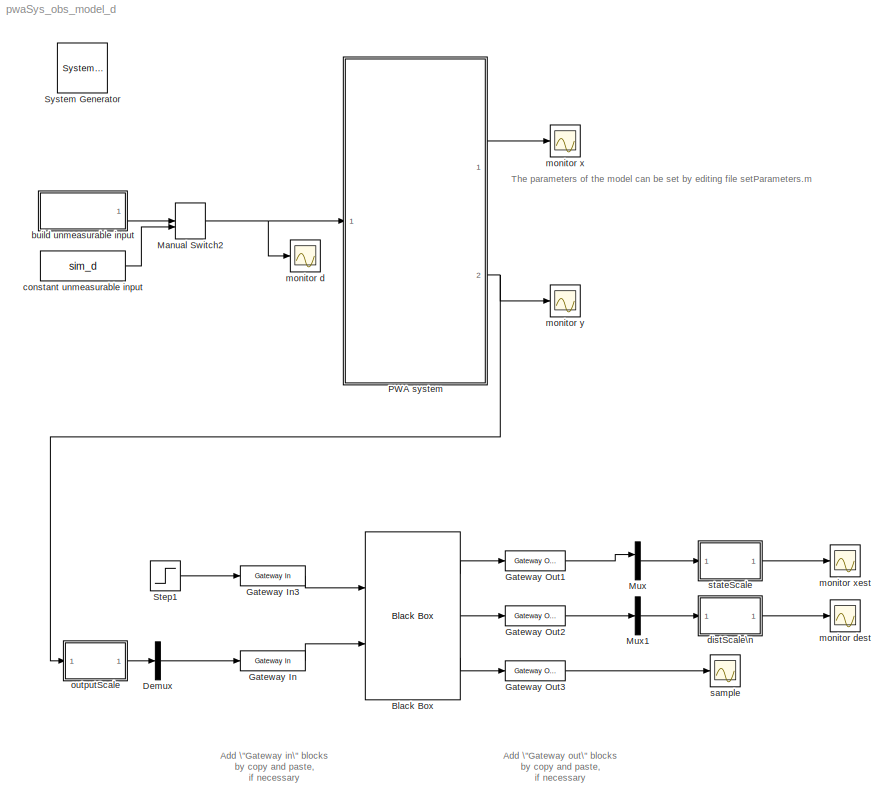
MODEL pwaSys_obs_model_d
KIND model
CONFIG InitFcn = load simulink.mat\nsetParameters
CONFIG StartFcn = load simulink.mat\nsetParameters\nclear res_X res_U res_Y res_P res_D\nclear res_Xest res_Dest res_Yest
CONFIG StopFcn = plotScope
BLOCK [Reference]  System Generator  REF=xbsIndex_r4/ System Generator
  AttributesFormatString = System\\nGenerator
  Impl_file = Vivado Implementation Defaults
  Ports = []
  SID = 96
  SourceBlock = xbsIndex_r4/ System Generator
  SourceType = Xilinx System Generator Block
  Synth_file = Vivado Synthesis Defaults
  Tag = genX
  UserData = DataTag0
  UserDataPersistent = on
  block_type = sysgen
  clock_wrapper = Clock Enables
  core_generation = According to Block Masks
  dbl_ovrd = According to Block Masks
  dcm_input_clock_period = 10
  deprecated_control = off
  directory = ./netlist
  eval_field = 0
  has_advanced_control = 0
  incr_netlist = off
  infoedit = System Generator
  package = fbg676
  part = xc7k325t
  proj_type = Vivado
  run_coregen = off
  sg_icon_stat = 50,50,0,0,token,white,0,58c5b5770fe5f7c311f53dbc6e73f0f6,right,,[ ],[ ]
  sg_mask_display = fprintf('','COMMENT: begin icon graphics');\npatch([0 50 50 0 0 ],[0 0 50 50 0 ],[1 1 1 ]);\npatch([1.6375 16.81 27.31 37.81 48.31 27.31 12.1375 1.6375 ],[36.655 36.655 47.155 36.655 47.155 47.155 47.155 36.655 ],[0.933333 0.203922 0.141176 ]);\npatch([12.1375 27.31 16.81 1.6375 12.1375 ],[26.155 26.155 36.655 36.655 26.155 ],[0.698039 0.0313725 0.219608 ]);\npatch([1.6375 16.81 27.31 12.1375 1.63...<+337ch>
  sggui_pos = 326,312,454,398
  simulink_period = clk_period
  speed = -3
  synthesis_tool = Vivado
  sysclk_period = 10
  testbench = off
  trim_vbits = Everywhere in SubSystem
  xilinxfamily = kintex7
BLOCK [Reference] Black Box  REF=xbsIndex_r4/Black Box
  Ports = [2, 3]
  SID = 60
  SourceBlock = xbsIndex_r4/Black Box
  SourceType = Xilinx Black Box Block
  block_type = blackbox2
  has_advanced_control = 0
  infoedit = Incorporates black box HDL and simulation model into a System Generator design.<br><br>You must supply a Black Box with certain information about the HDL component you would like to bring into System Generator. This information is provided through a Matlab function.<br><br>When \"Simulation mode\" is set to \"Inactive\", you will typically want to provide a separate simulation model by using a Sim...<+134ch>
  init_code = embeddedSystem_config
  sg_icon_stat = 95,170,2,3,white,blue,0,e8ec7301,right,,[ ],[ ]
  sg_mask_display = fprintf('','COMMENT: begin icon graphics');\npatch([0 95 95 0 0 ],[0 0 170 170 0 ],[0.77 0.82 0.91 ]);\nplot([0 95 95 0 0 ],[0 0 170 170 0 ]);\npatch([18.075 36.86 49.86 62.86 75.86 49.86 31.075 18.075 ],[99.43 99.43 112.43 99.43 112.43 112.43 112.43 99.43 ],[1 1 1 ]);\npatch([31.075 49.86 36.86 18.075 31.075 ],[86.43 86.43 99.43 99.43 86.43 ],[0.931 0.946 0.973 ]);\npatch([18.075 36.86 49.86 31.0...<+531ch>
  sggui_pos = -10,14,403,439
  sim_method = ISE Simulator
  verbose = off
  xl_area = [0,0,0,0,0,0,0]
  xl_use_area = off
BLOCK [Demux] Demux
  DisplayOption = bar
  Outputs = sim_ny
  Ports = [1, 1]
  SID = 61
BLOCK [Reference] Gateway In  REF=xbsIndex_r4/Gateway In
  ADCChannel = '1'
  LOCs = {}
  Ports = [1, 1]
  SID = 62
  SourceBlock = xbsIndex_r4/Gateway In
  SourceType = Xilinx Gateway In Block
  UseAsADC = off
  address_offset = hex2dec('00')
  arith_type = Signed  (2's comp)
  automatic_assignment = on
  bin_pt = 0
  block_type = gatewayin
  columns = 1
  dbl_ovrd = off
  exp_width = 8
  frac_width = 24
  gui_display_data_type = Fixed-point
  has_advanced_control = 0
  hdl_port = on
  infoedit = Gateway in block.  Converts inputs of type Simulink integer, single, double and fixed-point to  Xilinx fixed-point or floating-point data type.<br><br>Hardware notes:  In hardware these blocks become top level input ports.
  inherit_from_input = off
  interface = None
  intf_description = ''
  intf_name = ''
  io_standard = {}
  locs_specified = off
  n_bits = sim_n_bit_in
  overflow = Saturate
  period = clk_period
  preci_type = Single
  quantization = Round  (unbiased: +/- Inf)
  rows = 1
  sg_icon_stat = 65,20,1,1,white,yellow,1,00d3666e,right,,[ ],[ ]
  sg_mask_display = fprintf('','COMMENT: begin icon graphics');\npatch([0 65 65 0 0 ],[0 0 20 20 0 ],[0.95 0.93 0.65 ]);\nplot([0 65 65 0 0 ],[0 0 20 20 0 ]);\npatch([27.55 30.44 32.44 34.44 36.44 32.44 29.55 27.55 ],[12.22 12.22 14.22 12.22 14.22 14.22 14.22 12.22 ],[1 1 1 ]);\npatch([29.55 32.44 30.44 27.55 29.55 ],[10.22 10.22 12.22 12.22 10.22 ],[0.985 0.979 0.895 ]);\npatch([27.55 30.44 32.44 29.55 27.55 ],[8.22...<+396ch>
  sggui_pos = -10,14,388,698
  timing_constraint = None
  xl_area = [0,0,0,0,0,0,0]
  xl_use_area = off
BLOCK [Reference] Gateway In3  REF=xbsIndex_r4/Gateway In
  ADCChannel = '1'
  LOCs = {}
  Ports = [1, 1]
  SID = 63
  SourceBlock = xbsIndex_r4/Gateway In
  SourceType = Xilinx Gateway In Block
  UseAsADC = off
  address_offset = hex2dec('00')
  arith_type = Boolean
  automatic_assignment = on
  bin_pt = 14
  block_type = gatewayin
  columns = 1
  dbl_ovrd = off
  exp_width = 8
  frac_width = 24
  gui_display_data_type = Boolean
  has_advanced_control = 0
  hdl_port = on
  infoedit = Gateway in block.  Converts inputs of type Simulink integer, single, double and fixed-point to  Xilinx fixed-point or floating-point data type.<br><br>Hardware notes:  In hardware these blocks become top level input ports.
  inherit_from_input = off
  interface = None
  intf_description = ''
  intf_name = ''
  io_standard = {}
  locs_specified = off
  n_bits = 16
  overflow = Saturate
  period = clk_period
  preci_type = Single
  quantization = Round  (unbiased: +/- Inf)
  rows = 1
  sg_icon_stat = 65,20,1,1,white,yellow,1,00d3666e,right,,[ ],[ ]
  sg_mask_display = fprintf('','COMMENT: begin icon graphics');\npatch([0 65 65 0 0 ],[0 0 20 20 0 ],[0.95 0.93 0.65 ]);\nplot([0 65 65 0 0 ],[0 0 20 20 0 ]);\npatch([27.55 30.44 32.44 34.44 36.44 32.44 29.55 27.55 ],[12.22 12.22 14.22 12.22 14.22 14.22 14.22 12.22 ],[1 1 1 ]);\npatch([29.55 32.44 30.44 27.55 29.55 ],[10.22 10.22 12.22 12.22 10.22 ],[0.985 0.979 0.895 ]);\npatch([27.55 30.44 32.44 29.55 27.55 ],[8.22...<+396ch>
  sggui_pos = -10,14,388,698
  timing_constraint = None
  xl_area = [0,0,0,0,0,0,0]
  xl_use_area = off
BLOCK [Reference] Gateway Out1  REF=xbsIndex_r4/Gateway Out
  DACChannel = '1'
  LOCs = {}
  Ports = [1, 1]
  SID = 64
  SourceBlock = xbsIndex_r4/Gateway Out
  SourceType = Xilinx Gateway Out Block
  UseAsDAC = off
  address_offset = hex2dec('00')
  automatic_assignment = on
  block_type = gatewayout
  columns = 1
  has_advanced_control = 0
  hdl_port = on
  infoedit = Gateway out block.  Converts Xilinx fixed-point or floating-point type inputs into ouputs of type Simulink integer, single, double, or fixed-point.<br><br>Hardware notes:  In hardware these blocks become top level output ports or are discarded, depending on how they are configured.  <repeated x3 — deduplicated; at blocks: Gateway Out1, Gateway Out2, Gateway Out3>
  inherit_from_input = off
  interface = None
  intf_description = ''
  intf_name = ''
  io_standard = {}
  locs_specified = off
  rows = 1
  sg_icon_stat = 60,20,1,1,white,yellow,1,cc31b7ac,right,,[ ],[ ]
  sg_mask_display = fprintf('','COMMENT: begin icon graphics');\npatch([0 60 60 0 0 ],[0 0 20 20 0 ],[0.95 0.93 0.65 ]);\nplot([0 60 60 0 0 ],[0 0 20 20 0 ]);\npatch([25.55 28.44 30.44 32.44 34.44 30.44 27.55 25.55 ],[12.22 12.22 14.22 12.22 14.22 14.22 14.22 12.22 ],[1 1 1 ]);\npatch([27.55 30.44 28.44 25.55 27.55 ],[10.22 10.22 12.22 12.22 10.22 ],[0.985 0.979 0.895 ]);\npatch([25.55 28.44 30.44 27.55 25.55 ],[8.22...<+397ch>  <repeated x3 — deduplicated; at blocks: Gateway Out1, Gateway Out2, Gateway Out3>
  sggui_pos = -10,14,410,600
  timing_constraint = None
  xl_area = [0,0,0,0,0,0,0]
  xl_use_area = off
BLOCK [Reference] Gateway Out2  REF=xbsIndex_r4/Gateway Out
  DACChannel = '1'
  LOCs = {}
  Ports = [1, 1]
  SID = 87
  SourceBlock = xbsIndex_r4/Gateway Out
  SourceType = Xilinx Gateway Out Block
  UseAsDAC = off
  address_offset = hex2dec('00')
  automatic_assignment = on
  block_type = gatewayout
  columns = 1
  has_advanced_control = 0
  hdl_port = on
  inherit_from_input = off
  interface = None
  intf_description = ''
  intf_name = ''
  io_standard = {}
  locs_specified = off
  rows = 1
  sg_icon_stat = 60,20,1,1,white,yellow,1,cc31b7ac,right,,[ ],[ ]
  sggui_pos = -10,14,410,600
  timing_constraint = None
  xl_area = [0,0,0,0,0,0,0]
  xl_use_area = off
BLOCK [Reference] Gateway Out3  REF=xbsIndex_r4/Gateway Out
  DACChannel = '1'
  LOCs = {}
  Ports = [1, 1]
  SID = 65
  SourceBlock = xbsIndex_r4/Gateway Out
  SourceType = Xilinx Gateway Out Block
  UseAsDAC = off
  address_offset = hex2dec('00')
  automatic_assignment = on
  block_type = gatewayout
  columns = 1
  has_advanced_control = 0
  hdl_port = on
  inherit_from_input = off
  interface = None
  intf_description = ''
  intf_name = ''
  io_standard = {}
  locs_specified = off
  rows = 1
  sg_icon_stat = 60,20,1,1,white,yellow,1,cc31b7ac,right,,[ ],[ ]
  sggui_pos = 0,24,410,600
  timing_constraint = None
  xl_area = [0,0,0,0,0,0,0]
  xl_use_area = off
BLOCK [ManualSwitch] Manual Switch2
  CurrentSetting = 0
  SID = 32
BLOCK [Mux] Mux
  DisplayOption = bar
  Inputs = sim_nx
  Ports = [2, 1]
  SID = 66
BLOCK [Mux] Mux1
  DisplayOption = bar
  Inputs = sim_nd
  Ports = [1, 1]
  SID = 88
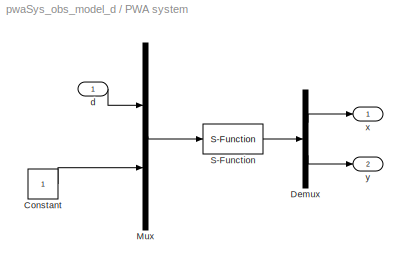
BLOCK [SubSystem] PWA system
  Ports = [1, 2]
  RequestExecContextInheritance = off
  SID = 5
  Variant = off
BLOCK [Constant] PWA system/Constant
  SID = 26
BLOCK [Demux] PWA system/Demux
  DisplayOption = bar
  Outputs = [sim_nx sim_ny]
  Ports = [1, 2]
  SID = 19
BLOCK [Mux] PWA system/Mux
  DisplayOption = bar
  Inputs = 2
  Ports = [2, 1]
  SID = 20
BLOCK [S-Function] PWA system/S-Function
  EnableBusSupport = off
  FunctionName = s_pwaSys_c
  Parameters = A,B,C,D,H,K,sim_x0
  Ports = [1, 1]
  SFunctionDeploymentMode = off
  SID = 97
BLOCK [Inport] PWA system/d
  IconDisplay = Port number
  SID = 9
BLOCK [Outport] PWA system/x
  IconDisplay = Port number
  SID = 7
BLOCK [Outport] PWA system/y
  IconDisplay = Port number
  Port = 2
  SID = 10
BLOCK [Step] Step1
  SID = 67
  SampleTime = 0
  Time = 0.5
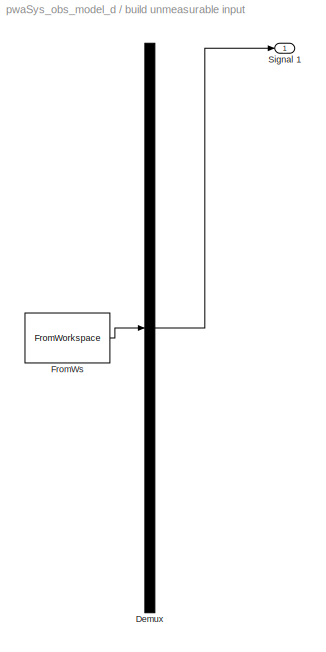
BLOCK [SubSystem] build unmeasurable input
  ClipboardFcn = sigbuilder_block('clipboard');
  CloseFcn = sigbuilder_block('close');
  ContinueFcn = sigbuilder_block('continue');
  CopyFcn = sigbuilder_block('copy');
  DeleteFcn = sigbuilder_block('delete');
  LoadFcn = sigbuilder_block('load');
  MaskHideContents = on
  ModelCloseFcn = sigbuilder_block('modelClose');
  NameChangeFcn = sigbuilder_block('namechange');
  OpenFcn = sigbuilder_block('open',[433.6 121.6 550.4 399.2 ]);
  PauseFcn = sigbuilder_block('pause');
  Ports = [0, 1]
  PreSaveFcn = sigbuilder_block('preSave');
  RequestExecContextInheritance = off
  SID = 13
  StartFcn = sigbuilder_block('start');
  StopFcn = sigbuilder_block('stop');
  Tag = STV Subsys
  Variant = off
BLOCK [Demux] build unmeasurable input/Demux
  Outputs = 1
  Ports = [1, 1]
  SID = 13:1
  Tag = STV Demux
BLOCK [FromWorkspace] build unmeasurable input/FromWs
  SID = 13:2
  SampleTime = 0
  SigBuilderData = DataTag1
  Tag = STV FromWs
  VariableName = tuvar
  VnvData = DataTag2
  ZeroCross = on
BLOCK [Outport] build unmeasurable input/Signal 1
  IconDisplay = Port number
  SID = 13:3
  Tag = STV Outport
BLOCK [Constant] constant unmeasurable input
  SID = 30
  Value = sim_d
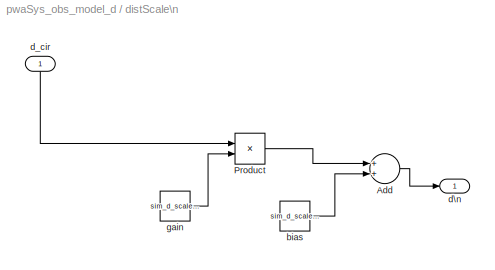
BLOCK [SubSystem] distScale\n
  Ports = [1, 1]
  RequestExecContextInheritance = off
  SID = 89
  Variant = off
BLOCK [Sum] distScale\n/Add
  InputSameDT = off
  OutDataTypeStr = Inherit: Inherit via internal rule
  Ports = [2, 1]
  SID = 91
  SaturateOnIntegerOverflow = off
BLOCK [Product] distScale\n/Product
  InputSameDT = off
  OutDataTypeStr = Inherit: Inherit via internal rule
  Ports = [2, 1]
  RndMeth = Floor
  SID = 92
  SaturateOnIntegerOverflow = off
BLOCK [Constant] distScale\n/bias
  SID = 93
  Value = sim_d_scale_bias
BLOCK [Outport] distScale\n/d\n
  IconDisplay = Port number
  SID = 95
BLOCK [Inport] distScale\n/d_cir
  IconDisplay = Port number
  SID = 90
BLOCK [Constant] distScale\n/gain
  SID = 94
  Value = sim_d_scale_gain
BLOCK [Scope] monitor d
  Ports = [1]
  SID = 25
  ScopeSpecificationString = C++SS(StrPVP('Location','[188, 365, 502, 602]'),StrPVP('Open','off'),MxPVP('AxesTitles',24,'struct(''axes1'',''%<SignalLabel>'')'),MxPVP('ScopeGraphics',28,'struct(''FigureColor'',''[0.5 0.5 0.5]'',''AxesColor'',''[0 0 0]'',''AxesTickColor'',''[1 1 1]'',''LineColors'',''[1 1 0;1 0 1;0 1 1;1 0 0;0 1 0;0 0 1]'',''LineStyles'',''-|-|-|-|-|-'',''LineWidths'',''[0.5 0.5 0.5 0.5 0.5 0.5]'',''MarkerStyle...<+263ch>
BLOCK [Scope] monitor dest
  Ports = [1]
  SID = 45
  ScopeSpecificationString = C++SS(StrPVP('Location','[188, 336, 502, 573]'),StrPVP('Open','off'),MxPVP('AxesTitles',24,'struct(''axes1'',''%<SignalLabel>'')'),MxPVP('ScopeGraphics',28,'struct(''FigureColor'',''[0.5 0.5 0.5]'',''AxesColor'',''[0 0 0]'',''AxesTickColor'',''[1 1 1]'',''LineColors'',''[1 1 0;1 0 1;0 1 1;1 0 0;0 1 0;0 0 1]'',''LineStyles'',''-|-|-|-|-|-'',''LineWidths'',''[0.5 0.5 0.5 0.5 0.5 0.5]'',''MarkerStyle...<+266ch>
BLOCK [Scope] monitor x
  Ports = [1]
  SID = 16
  ScopeSpecificationString = C++SS(StrPVP('Location','[188, 364, 512, 603]'),StrPVP('Open','off'),MxPVP('AxesTitles',24,'struct(''axes1'',''%<SignalLabel>'')'),MxPVP('ScopeGraphics',28,'struct(''FigureColor'',''[0.5 0.5 0.5]'',''AxesColor'',''[0 0 0]'',''AxesTickColor'',''[1 1 1]'',''LineColors'',''[1 1 0;1 0 1;0 1 1;1 0 0;0 1 0;0 0 1]'',''LineStyles'',''-|-|-|-|-|-'',''LineWidths'',''[0.5 0.5 0.5 0.5 0.5 0.5]'',''MarkerStyle...<+263ch>
BLOCK [Scope] monitor xest
  Ports = [1]
  SID = 44
  ScopeSpecificationString = Simulink.scopes.TimeScopeBlockCfg('CurrentConfiguration', extmgr.ConfigurationSet(extmgr.Configuration('Core','General UI',true),extmgr.Configuration('Core','Source UI',true),extmgr.Configuration('Sources','WiredSimulink',true,'DataLogging',true,'DataLoggingVariableName','res_Xest','DataLoggingSaveFormat','StructureWithTime','DataLoggingDecimation','1','DataLoggingDecimateData',true),extmgr.Config...<+912ch>
BLOCK [Scope] monitor y
  Ports = [1]
  SID = 17
  ScopeSpecificationString = C++SS(StrPVP('Location','[188, 365, 502, 602]'),StrPVP('Open','off'),MxPVP('AxesTitles',24,'struct(''axes1'',''%<SignalLabel>'')'),MxPVP('ScopeGraphics',28,'struct(''FigureColor'',''[0.5 0.5 0.5]'',''AxesColor'',''[0 0 0]'',''AxesTickColor'',''[1 1 1]'',''LineColors'',''[1 1 0;1 0 1;0 1 1;1 0 0;0 1 0;0 0 1]'',''LineStyles'',''-|-|-|-|-|-'',''LineWidths'',''[0.5 0.5 0.5 0.5 0.5 0.5]'',''MarkerStyle...<+263ch>
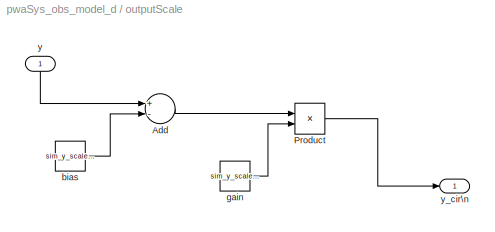
BLOCK [SubSystem] outputScale
  Ports = [1, 1]
  RequestExecContextInheritance = off
  SID = 68
  Variant = off
BLOCK [Sum] outputScale/Add
  InputSameDT = off
  Inputs = +-
  OutDataTypeStr = Inherit: Inherit via internal rule
  Ports = [2, 1]
  SID = 70
  SaturateOnIntegerOverflow = off
BLOCK [Product] outputScale/Product
  InputSameDT = off
  OutDataTypeStr = Inherit: Inherit via internal rule
  Ports = [2, 1]
  RndMeth = Floor
  SID = 71
  SaturateOnIntegerOverflow = off
BLOCK [Constant] outputScale/bias
  SID = 72
  Value = sim_y_scale_bias
BLOCK [Constant] outputScale/gain
  SID = 73
  Value = sim_y_scale_gain
BLOCK [Inport] outputScale/y
  IconDisplay = Port number
  SID = 69
BLOCK [Outport] outputScale/y_cir\n
  IconDisplay = Port number
  SID = 74
BLOCK [Scope] sample
  Ports = [1]
  SID = 75
  ScopeSpecificationString = C++SS(StrPVP('SaveName','ScopeData'),StrPVP('LimitDataPoints','on'),StrPVP('DataFormat','Array'),StrPVP('Decimation','1'),StrPVP('BlockParamSampleInput','off'),StrPVP('SaveName','ScopeData'),StrPVP('SaveName','ScopeData'),StrPVP('SaveName','ScopeData'),StrPVP('SaveName','ScopeData'),StrPVP('SaveName','ScopeData1'))
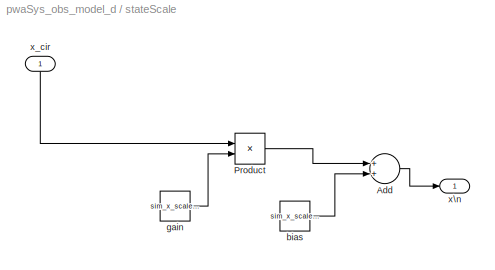
BLOCK [SubSystem] stateScale
  Ports = [1, 1]
  RequestExecContextInheritance = off
  SID = 76
  Variant = off
BLOCK [Sum] stateScale/Add
  InputSameDT = off
  OutDataTypeStr = Inherit: Inherit via internal rule
  Ports = [2, 1]
  SID = 78
  SaturateOnIntegerOverflow = off
BLOCK [Product] stateScale/Product
  InputSameDT = off
  OutDataTypeStr = Inherit: Inherit via internal rule
  Ports = [2, 1]
  RndMeth = Floor
  SID = 79
  SaturateOnIntegerOverflow = off
BLOCK [Constant] stateScale/bias
  SID = 80
  Value = sim_x_scale_bias
BLOCK [Constant] stateScale/gain
  SID = 81
  Value = sim_x_scale_gain
BLOCK [Outport] stateScale/x\n
  IconDisplay = Port number
  SID = 82
BLOCK [Inport] stateScale/x_cir
  IconDisplay = Port number
  SID = 77
ANNOTATION (root): \n \n
ANNOTATION (root): \n \n The parameters of the model can be set by editing file setParameters.m \n \n You can generate custom signals for system unmeasurable inputs (d), \n or you can set them constant (choose with the orange switches) \n \n The simulation results are also saved in MATLAB workspace as variables \n res_X, res_Y, res_D, res_Xest, res_Yest and res_Dest and \n automatically plotted
ANNOTATION (root): Add \"Gateway in\" blocks \nby copy and paste,\nif necessary
ANNOTATION (root): Add \"Gateway out\" blocks \nby copy and paste,\nif necessary
LINE Black Box:1 -> Gateway Out1:1
LINE Black Box:2 -> Gateway Out2:1
LINE Black Box:3 -> Gateway Out3:1
LINE Demux:1 -> Gateway In:1
LINE Gateway In3:1 -> Black Box:1
LINE Gateway In:1 -> Black Box:2
LINE Gateway Out1:1 -> Mux:1
LINE Gateway Out2:1 -> Mux1:1
LINE Gateway Out3:1 -> sample:1
NET Manual Switch2:1 -> PWA system:1, monitor d:1
LINE Mux1:1 -> distScale\n:1
LINE Mux:1 -> stateScale:1
LINE PWA system/Constant:1 -> PWA system/Mux:2
LINE PWA system/Demux:1 -> PWA system/x:1
LINE PWA system/Demux:2 -> PWA system/y:1
LINE PWA system/Mux:1 -> PWA system/S-Function:1
LINE PWA system/S-Function:1 -> PWA system/Demux:1
LINE PWA system/d:1 -> PWA system/Mux:1
LINE PWA system:1 -> monitor x:1
NET PWA system:2 -> monitor y:1, outputScale:1
LINE Step1:1 -> Gateway In3:1
LINE build unmeasurable input/Demux:1 -> build unmeasurable input/Signal 1:1
LINE build unmeasurable input/FromWs:1 -> build unmeasurable input/Demux:1
LINE build unmeasurable input:1 -> Manual Switch2:1
LINE constant unmeasurable input:1 -> Manual Switch2:2
LINE distScale\n/Add:1 -> distScale\n/d\n:1
LINE distScale\n/Product:1 -> distScale\n/Add:1
LINE distScale\n/bias:1 -> distScale\n/Add:2
LINE distScale\n/d_cir:1 -> distScale\n/Product:1
LINE distScale\n/gain:1 -> distScale\n/Product:2
LINE distScale\n:1 -> monitor dest:1
LINE outputScale/Add:1 -> outputScale/Product:1
LINE outputScale/Product:1 -> outputScale/y_cir\n:1
LINE outputScale/bias:1 -> outputScale/Add:2
LINE outputScale/gain:1 -> outputScale/Product:2
LINE outputScale/y:1 -> outputScale/Add:1
LINE outputScale:1 -> Demux:1
LINE stateScale/Add:1 -> stateScale/x\n:1
LINE stateScale/Product:1 -> stateScale/Add:1
LINE stateScale/bias:1 -> stateScale/Add:2
LINE stateScale/gain:1 -> stateScale/Product:2
LINE stateScale/x_cir:1 -> stateScale/Product:1
LINE stateScale:1 -> monitor xest:1
note: NET lines group one-source signal fan-out (src -> all destinations, sorted); 1:1 wires keep LINE
